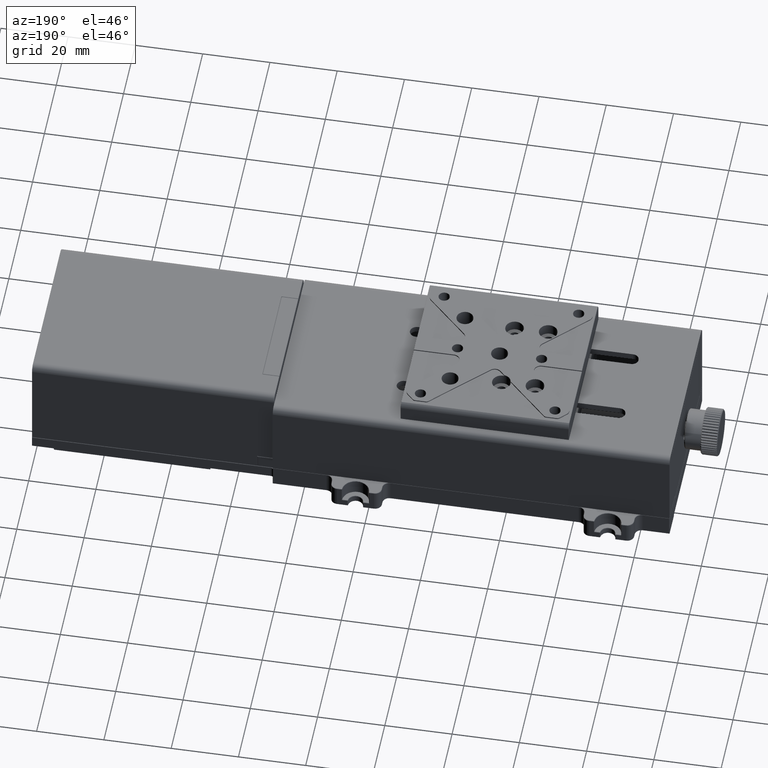
[diagram: clean part render]
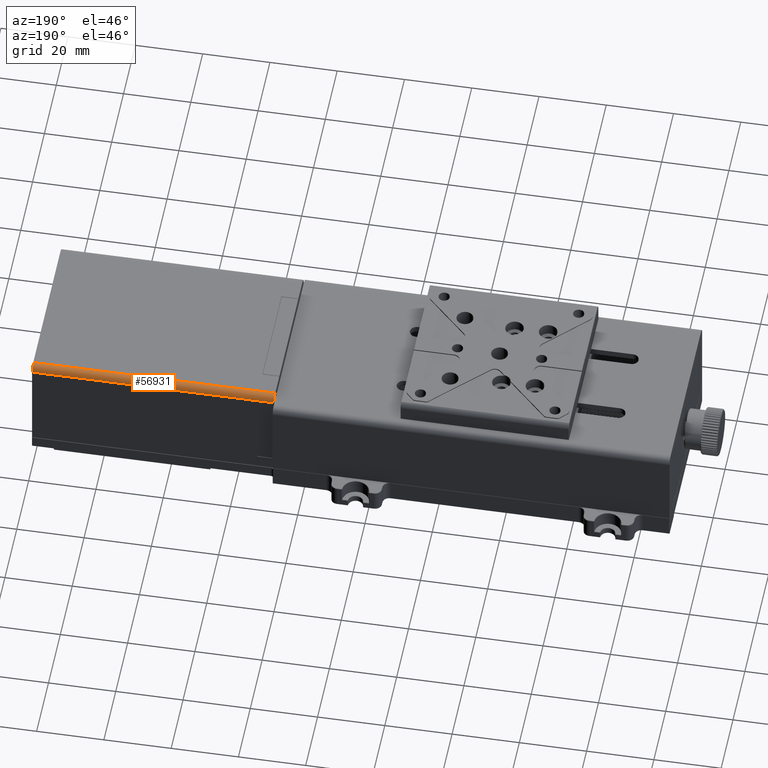
[diagram: same view with one face highlighted and labeled with its STEP entity id]
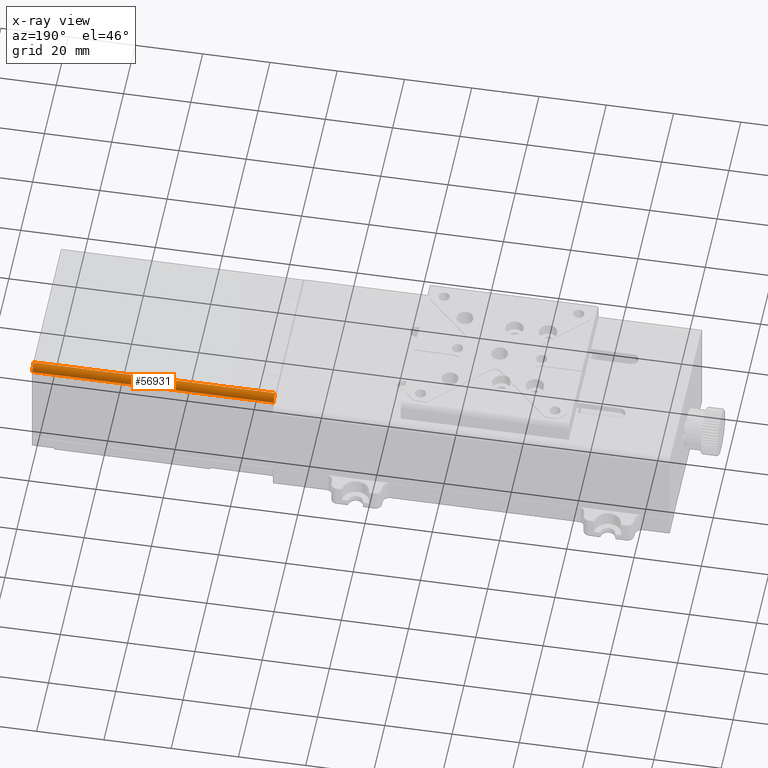
[diagram: x-ray of the same camera — body ghosted, the highlighted face saturated]
A machine part, auxiliary view. The second image highlights one B-rep face of the part: STEP entity #56931.
The next image is the same camera in x-ray: the body ghosted, the highlighted face saturated — about 0% of this face is hidden behind the body in this view.
In plain terms, the highlighted cylindrical surface (edge-blend (fillet) strip) has radius 2 mm, axis along (1, -0, 0).
Its self-contained STEP definition (entity closure, byte-faithful):
#1046 = CARTESIAN_POINT ( 'NONE',  ( 100.7898876404493933, 47.25842696639259799, 28.50000000000000000 ) ) ;
#3059 = ORIENTED_EDGE ( 'NONE', *, *, #55885, .F. ) ;
#8994 = CARTESIAN_POINT ( 'NONE',  ( 100.7898876404493933, 47.25842696639259799, 26.50000000000000000 ) ) ;
#9293 = CIRCLE ( 'NONE', #64681, 1.999999999999998224 ) ;
#9332 = ORIENTED_EDGE ( 'NONE', *, *, #81714, .F. ) ;
#10192 = CYLINDRICAL_SURFACE ( 'NONE', #74665, 1.999999999999998224 ) ;
#12653 = CARTESIAN_POINT ( 'NONE',  ( 28.88988764044945157, 49.25842696639259799, 26.50000000000000000 ) ) ;
#13026 = LINE ( 'NONE', #78914, #82851 ) ;
#13940 = AXIS2_PLACEMENT_3D ( 'NONE', #8994, #14643, #35455 ) ;
#14643 = DIRECTION ( 'NONE',  ( -1.000000000000000000, 2.220446049250315053E-16, 0.000000000000000000 ) ) ;
#15091 = VERTEX_POINT ( 'NONE', #48236 ) ;
#20435 = EDGE_LOOP ( 'NONE', ( #3059, #29907, #9332, #71130 ) ) ;
#22081 = EDGE_CURVE ( 'NONE', #68365, #15091, #9293, .T. ) ;
#23630 = CARTESIAN_POINT ( 'NONE',  ( 28.88988764044945157, 47.25842696639259799, 26.50000000000000000 ) ) ;
#29907 = ORIENTED_EDGE ( 'NONE', *, *, #22081, .T. ) ;
#31368 = VERTEX_POINT ( 'NONE', #83593 ) ;
#35455 = DIRECTION ( 'NONE',  ( 0.000000000000000000, 0.000000000000000000, -1.000000000000000000 ) ) ;
#36116 = CIRCLE ( 'NONE', #13940, 1.999999999999998224 ) ;
#36651 = DIRECTION ( 'NONE',  ( 0.000000000000000000, 0.000000000000000000, 1.000000000000000000 ) ) ;
#40581 = CARTESIAN_POINT ( 'NONE',  ( 28.98988764044944944, 49.25842696639259799, 26.50000000000000000 ) ) ;
#42867 = VERTEX_POINT ( 'NONE', #1046 ) ;
#45108 = DIRECTION ( 'NONE',  ( -1.000000000000000000, 2.220446049250315053E-16, 0.000000000000000000 ) ) ;
#48236 = CARTESIAN_POINT ( 'NONE',  ( 28.98988764044944944, 47.25842696639259799, 28.50000000000000000 ) ) ;
#49641 = DIRECTION ( 'NONE',  ( 1.000000000000000000, -2.220446049250315053E-16, 0.000000000000000000 ) ) ;
#50487 = DIRECTION ( 'NONE',  ( 0.000000000000000000, 0.000000000000000000, 1.000000000000000000 ) ) ;
#55885 = EDGE_CURVE ( 'NONE', #68365, #31368, #65945, .T. ) ;
#56931 = ADVANCED_FACE ( 'NONE', ( #69583 ), #10192, .T. ) ;
#62225 = CARTESIAN_POINT ( 'NONE',  ( 28.98988764044944944, 47.25842696639259799, 26.50000000000000000 ) ) ;
#64681 = AXIS2_PLACEMENT_3D ( 'NONE', #62225, #83415, #50487 ) ;
#65945 = LINE ( 'NONE', #12653, #81446 ) ;
#68365 = VERTEX_POINT ( 'NONE', #40581 ) ;
#69583 = FACE_OUTER_BOUND ( 'NONE', #20435, .T. ) ;
#71130 = ORIENTED_EDGE ( 'NONE', *, *, #83480, .T. ) ;
#72032 = DIRECTION ( 'NONE',  ( 1.000000000000000000, -2.220446049250315053E-16, 0.000000000000000000 ) ) ;
#74665 = AXIS2_PLACEMENT_3D ( 'NONE', #23630, #49641, #36651 ) ;
#78914 = CARTESIAN_POINT ( 'NONE',  ( 28.88988764044945157, 47.25842696639259799, 28.50000000000000000 ) ) ;
#81446 = VECTOR ( 'NONE', #72032, 1000.000000000000000 ) ;
#81714 = EDGE_CURVE ( 'NONE', #42867, #15091, #13026, .T. ) ;
#82851 = VECTOR ( 'NONE', #45108, 1000.000000000000000 ) ;
#83415 = DIRECTION ( 'NONE',  ( 1.000000000000000000, -2.220446049250315053E-16, 0.000000000000000000 ) ) ;
#83480 = EDGE_CURVE ( 'NONE', #42867, #31368, #36116, .T. ) ;
#83593 = CARTESIAN_POINT ( 'NONE',  ( 100.7898876404493933, 49.25842696639259799, 26.50000000000000000 ) ) ;